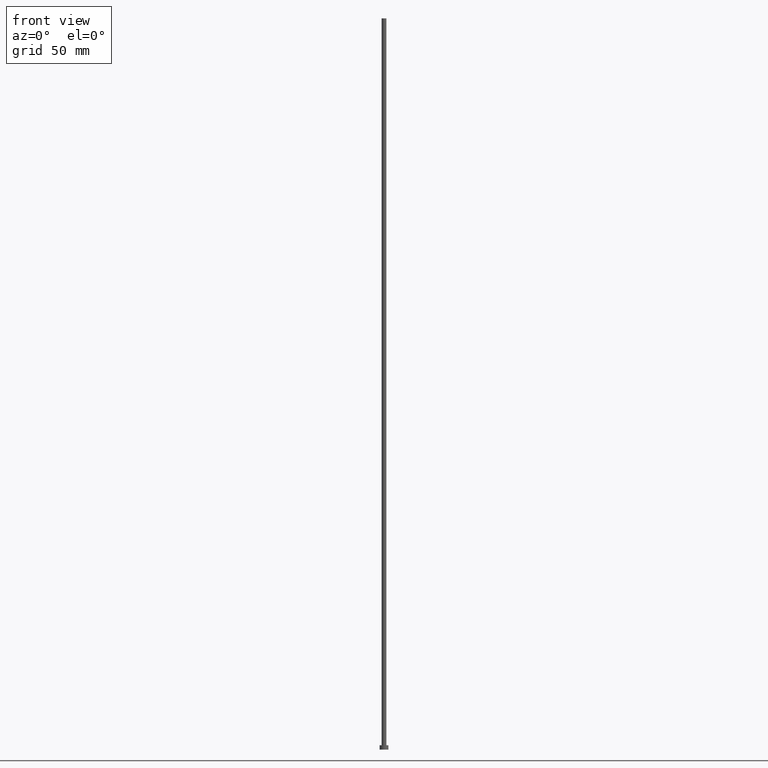
[diagram: clean part render]
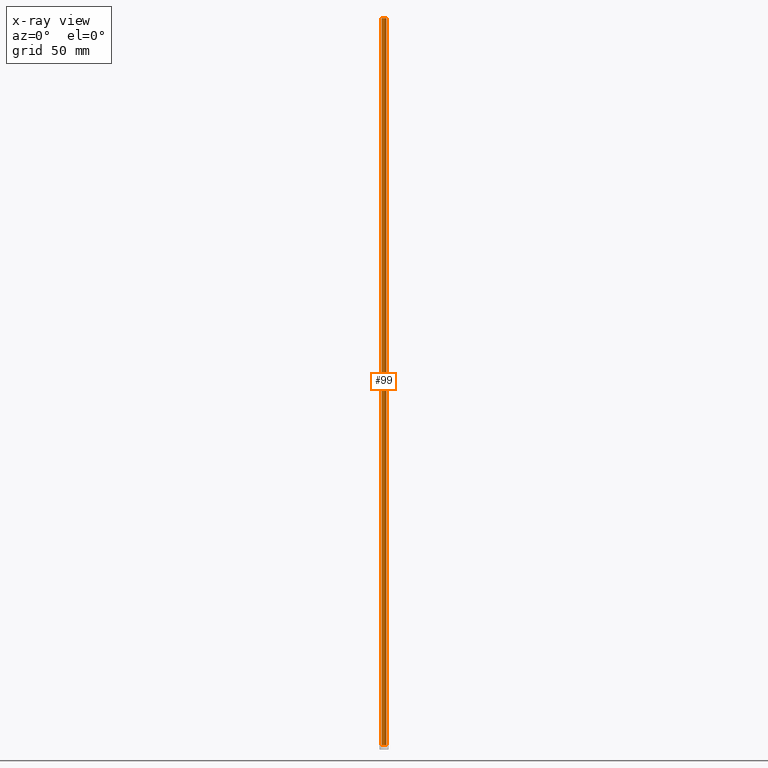
[diagram: x-ray — body ghosted, one internal face saturated and labeled with its STEP entity id]
A machine part, front view, then the same camera in x-ray: the body is ghosted and one INTERNAL B-rep face — a face not visible from any outside direction — is saturated and labeled: STEP entity #99.
In plain terms, the highlighted cylindrical surface (edge-blend (fillet) strip) has radius 1.6 mm, axis along (-0, -0, -1).
Its self-contained STEP definition (entity closure, byte-faithful):
#14 = AXIS2_PLACEMENT_3D ( 'NONE', #171, #153, #225 ) ;
#16 = CARTESIAN_POINT ( 'NONE',  ( 1.600000000000000089, 1.959434878635764737E-16, 500.0000000000000000 ) ) ;
#17 = VERTEX_POINT ( 'NONE', #149 ) ;
#27 = ORIENTED_EDGE ( 'NONE', *, *, #48, .F. ) ;
#28 = CIRCLE ( 'NONE', #80, 1.600000000000000089 ) ;
#31 = DIRECTION ( 'NONE',  ( 1.000000000000000000, 0.000000000000000000, 0.000000000000000000 ) ) ;
#37 = DIRECTION ( 'NONE',  ( 0.000000000000000000, 0.000000000000000000, 1.000000000000000000 ) ) ;
#39 = CARTESIAN_POINT ( 'NONE',  ( -1.600000000000000089, 0.000000000000000000, 500.0000000000000000 ) ) ;
#48 = EDGE_CURVE ( 'NONE', #198, #183, #28, .T. ) ;
#55 = EDGE_CURVE ( 'NONE', #183, #129, #160, .T. ) ;
#56 = ORIENTED_EDGE ( 'NONE', *, *, #240, .T. ) ;
#57 = CARTESIAN_POINT ( 'NONE',  ( 1.600000000000000089, 1.959434878635764737E-16, 500.0000000000000000 ) ) ;
#74 = DIRECTION ( 'NONE',  ( 0.000000000000000000, 0.000000000000000000, 1.000000000000000000 ) ) ;
#77 = EDGE_CURVE ( 'NONE', #198, #17, #123, .T. ) ;
#80 = AXIS2_PLACEMENT_3D ( 'NONE', #102, #74, #31 ) ;
#82 = FACE_OUTER_BOUND ( 'NONE', #161, .T. ) ;
#85 = DIRECTION ( 'NONE',  ( -0.000000000000000000, -0.000000000000000000, -1.000000000000000000 ) ) ;
#98 = CIRCLE ( 'NONE', #188, 1.600000000000000089 ) ;
#99 = ADVANCED_FACE ( 'NONE', ( #82 ), #249, .T. ) ;
#102 = CARTESIAN_POINT ( 'NONE',  ( 0.000000000000000000, 0.000000000000000000, 500.0000000000000000 ) ) ;
#110 = ORIENTED_EDGE ( 'NONE', *, *, #77, .T. ) ;
#123 = LINE ( 'NONE', #16, #245 ) ;
#129 = VERTEX_POINT ( 'NONE', #132 ) ;
#132 = CARTESIAN_POINT ( 'NONE',  ( -1.600000000000000089, 0.000000000000000000, 3.000000000000000000 ) ) ;
#149 = CARTESIAN_POINT ( 'NONE',  ( 1.600000000000000089, 1.959434878635764737E-16, 3.000000000000000000 ) ) ;
#153 = DIRECTION ( 'NONE',  ( -0.000000000000000000, -0.000000000000000000, -1.000000000000000000 ) ) ;
#157 = DIRECTION ( 'NONE',  ( -0.000000000000000000, -0.000000000000000000, -1.000000000000000000 ) ) ;
#160 = LINE ( 'NONE', #241, #231 ) ;
#161 = EDGE_LOOP ( 'NONE', ( #27, #110, #56, #217 ) ) ;
#171 = CARTESIAN_POINT ( 'NONE',  ( 0.000000000000000000, 0.000000000000000000, 500.0000000000000000 ) ) ;
#183 = VERTEX_POINT ( 'NONE', #39 ) ;
#188 = AXIS2_PLACEMENT_3D ( 'NONE', #253, #37, #227 ) ;
#198 = VERTEX_POINT ( 'NONE', #57 ) ;
#217 = ORIENTED_EDGE ( 'NONE', *, *, #55, .F. ) ;
#225 = DIRECTION ( 'NONE',  ( -1.000000000000000000, 0.000000000000000000, 0.000000000000000000 ) ) ;
#227 = DIRECTION ( 'NONE',  ( 1.000000000000000000, 0.000000000000000000, 0.000000000000000000 ) ) ;
#231 = VECTOR ( 'NONE', #157, 1000.000000000000000 ) ;
#240 = EDGE_CURVE ( 'NONE', #17, #129, #98, .T. ) ;
#241 = CARTESIAN_POINT ( 'NONE',  ( -1.600000000000000089, 0.000000000000000000, 500.0000000000000000 ) ) ;
#245 = VECTOR ( 'NONE', #85, 1000.000000000000000 ) ;
#249 = CYLINDRICAL_SURFACE ( 'NONE', #14, 1.600000000000000089 ) ;
#253 = CARTESIAN_POINT ( 'NONE',  ( 0.000000000000000000, 0.000000000000000000, 3.000000000000000000 ) ) ;